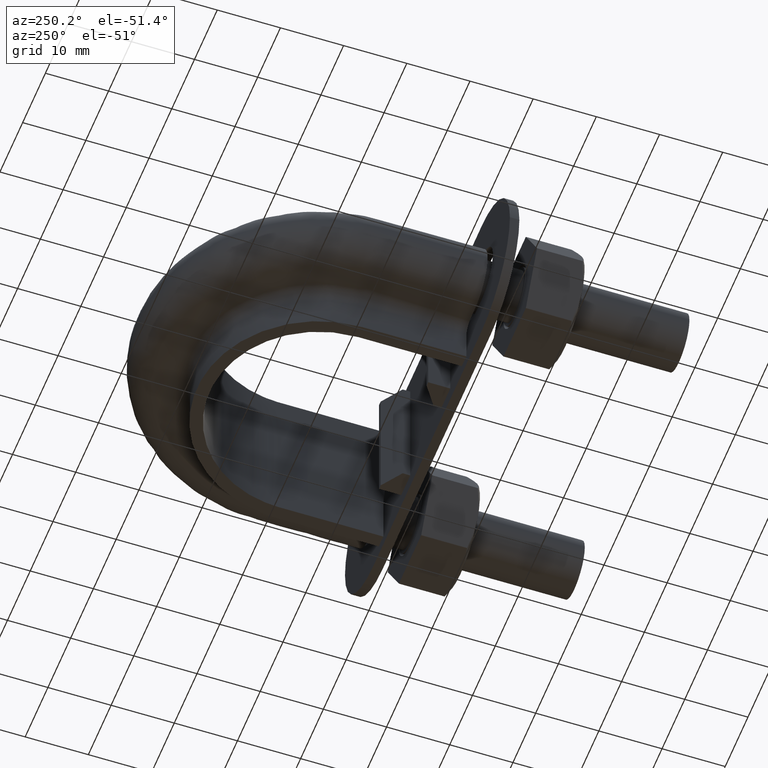
[diagram: clean part render]
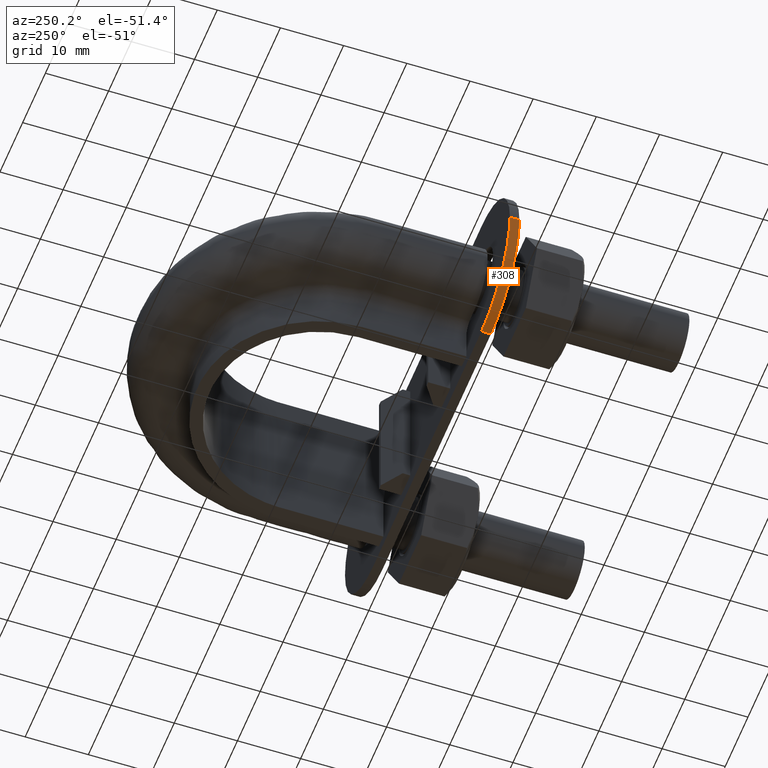
[diagram: same view with one face highlighted and labeled with its STEP entity id]
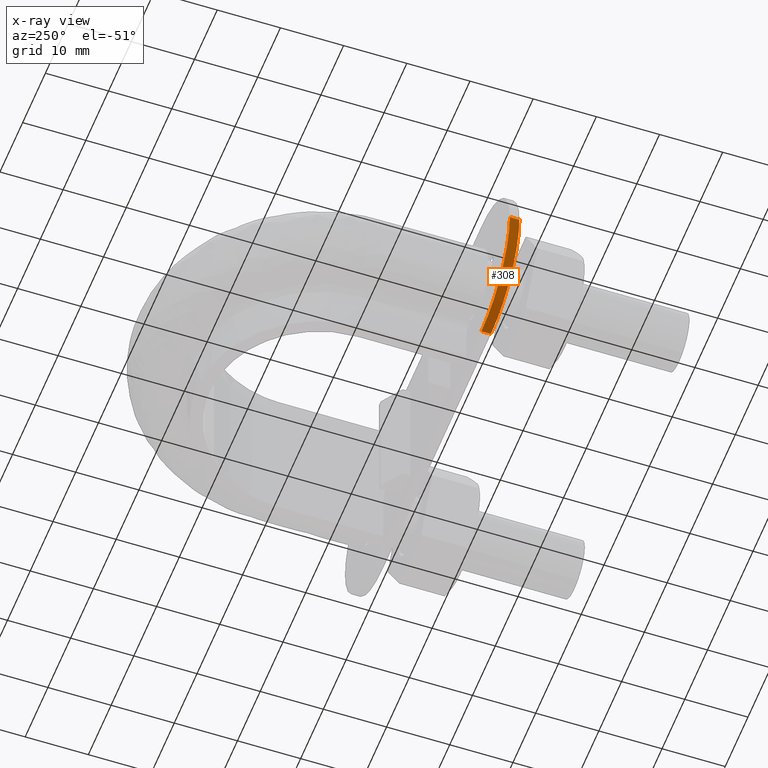
[diagram: x-ray of the same camera — body ghosted, the highlighted face saturated]
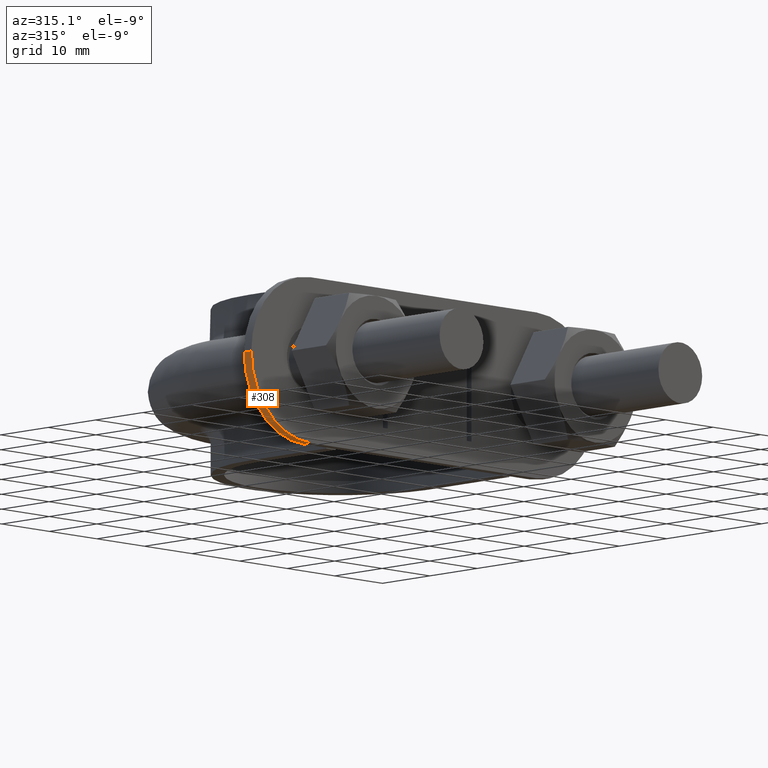
[diagram: same view with one face highlighted and labeled with its STEP entity id]
A machine part, auxiliary view. The second image highlights one B-rep face of the part: STEP entity #308.
The next image is the same camera in x-ray: the body ghosted, the highlighted face saturated — about 0% of this face is hidden behind the body in this view.
A second angle (auxiliary view) of the same face is appended — the face is thin or edge-on in the first view.
In plain terms, the highlighted cylindrical surface (partial cylindrical patch) has radius 12.5 mm, axis along (0, -1, 0).
Its self-contained STEP definition (entity closure, byte-faithful):
#308 = ADVANCED_FACE( '', ( #481 ), #482, .T. );
#481 = FACE_OUTER_BOUND( '', #1563, .T. );
#482 = CYLINDRICAL_SURFACE( '', #1564, 12.5000000000000 );
#1563 = EDGE_LOOP( '', ( #2019, #2020, #2021, #2022 ) );
#1564 = AXIS2_PLACEMENT_3D( '', #2023, #2024, #2025 );
#2019 = ORIENTED_EDGE( '', *, *, #2633, .F. );
#2020 = ORIENTED_EDGE( '', *, *, #2647, .F. );
#2021 = ORIENTED_EDGE( '', *, *, #2598, .T. );
#2022 = ORIENTED_EDGE( '', *, *, #2613, .T. );
#2023 = CARTESIAN_POINT( '', ( -24.5000000000000, 30.2999999999996, 2.04654199757800E-009 ) );
#2024 = DIRECTION( '', ( 1.69669920844552E-014, -1.00000000000000, 1.57436294250950E-014 ) );
#2025 = DIRECTION( '', ( 8.35308489044844E-011, 1.57436294265123E-014, 1.00000000000000 ) );
#2598 = EDGE_CURVE( '', #2874, #2871, #2875, .T. );
#2613 = EDGE_CURVE( '', #2871, #2901, #2904, .T. );
#2633 = EDGE_CURVE( '', #2936, #2901, #2938, .T. );
#2647 = EDGE_CURVE( '', #2874, #2936, #2961, .T. );
#2871 = VERTEX_POINT( '', #3463 );
#2874 = VERTEX_POINT( '', #3466 );
#2875 = CIRCLE( '', #3467, 12.5000000000000 );
#2901 = VERTEX_POINT( '', #3501 );
#2904 = LINE( '', #3504, #3505 );
#2936 = VERTEX_POINT( '', #3553 );
#2938 = CIRCLE( '', #3556, 12.5000000000000 );
#2961 = LINE( '', #3589, #3590 );
#3463 = CARTESIAN_POINT( '', ( -37.0000000000000, 30.2999999999994, 3.09067413943711E-009 ) );
#3466 = CARTESIAN_POINT( '', ( -24.5000000010441, 30.2999999999994, -12.4999999979535 ) );
#3467 = AXIS2_PLACEMENT_3D( '', #4088, #4089, #4090 );
#3501 = CARTESIAN_POINT( '', ( -37.0000000000000, 31.7999999999994, 3.09065052399297E-009 ) );
#3504 = CARTESIAN_POINT( '', ( -37.0000000000000, 30.2999999999994, 3.09067413943711E-009 ) );
#3505 = VECTOR( '', #4117, 1000.00000000000 );
#3553 = CARTESIAN_POINT( '', ( -24.5000000010441, 31.7999999999994, -12.4999999979535 ) );
#3556 = AXIS2_PLACEMENT_3D( '', #4141, #4142, #4143 );
#3589 = CARTESIAN_POINT( '', ( -24.5000000010441, 30.2999999999994, -12.4999999979535 ) );
#3590 = VECTOR( '', #4163, 1000.00000000000 );
#4088 = CARTESIAN_POINT( '', ( -24.5000000000000, 30.2999999999996, 2.04654199757800E-009 ) );
#4089 = DIRECTION( '', ( -1.69669920844552E-014, 1.00000000000000, -1.57436294250950E-014 ) );
#4090 = DIRECTION( '', ( -8.35305713487283E-011, -1.57436294265123E-014, -1.00000000000000 ) );
#4117 = DIRECTION( '', ( -1.69669920844552E-014, 1.00000000000000, -1.57436294250950E-014 ) );
#4141 = CARTESIAN_POINT( '', ( -24.5000000000000, 31.7999999999996, 2.04651838213387E-009 ) );
#4142 = DIRECTION( '', ( -1.69669920844552E-014, 1.00000000000000, -1.57436294250950E-014 ) );
#4143 = DIRECTION( '', ( -8.35305713487283E-011, -1.57436294265123E-014, -1.00000000000000 ) );
#4163 = DIRECTION( '', ( -1.69669920844552E-014, 1.00000000000000, -1.57436294250950E-014 ) );